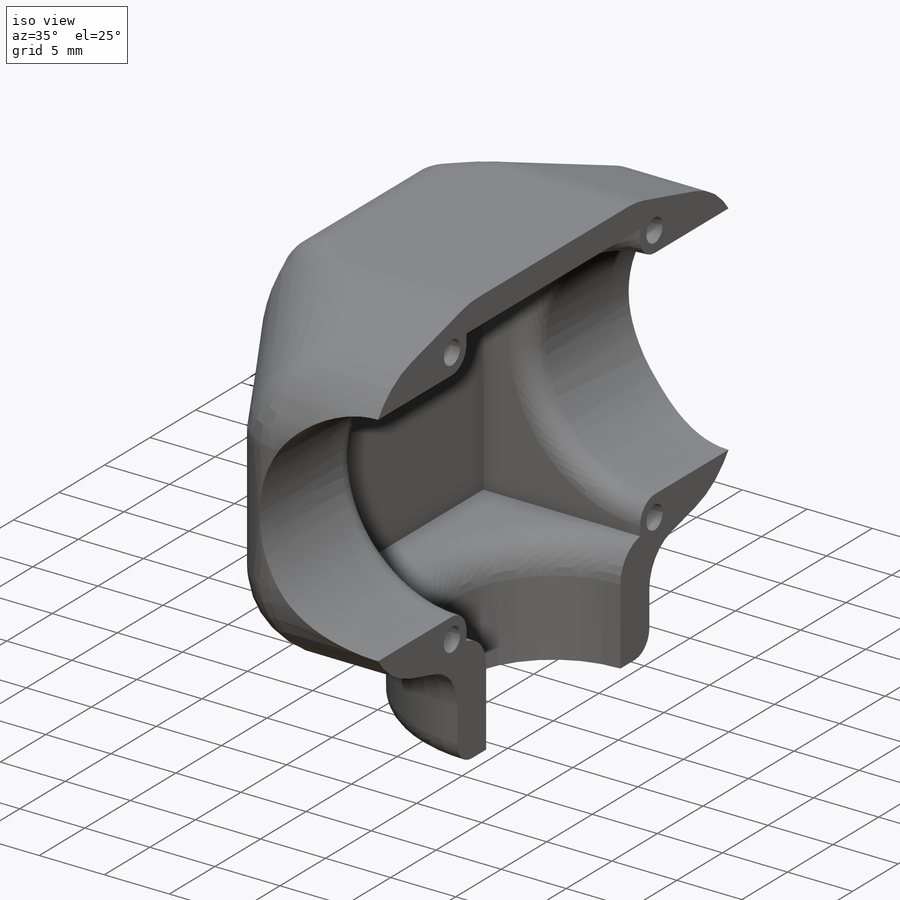
[diagram: iso view]
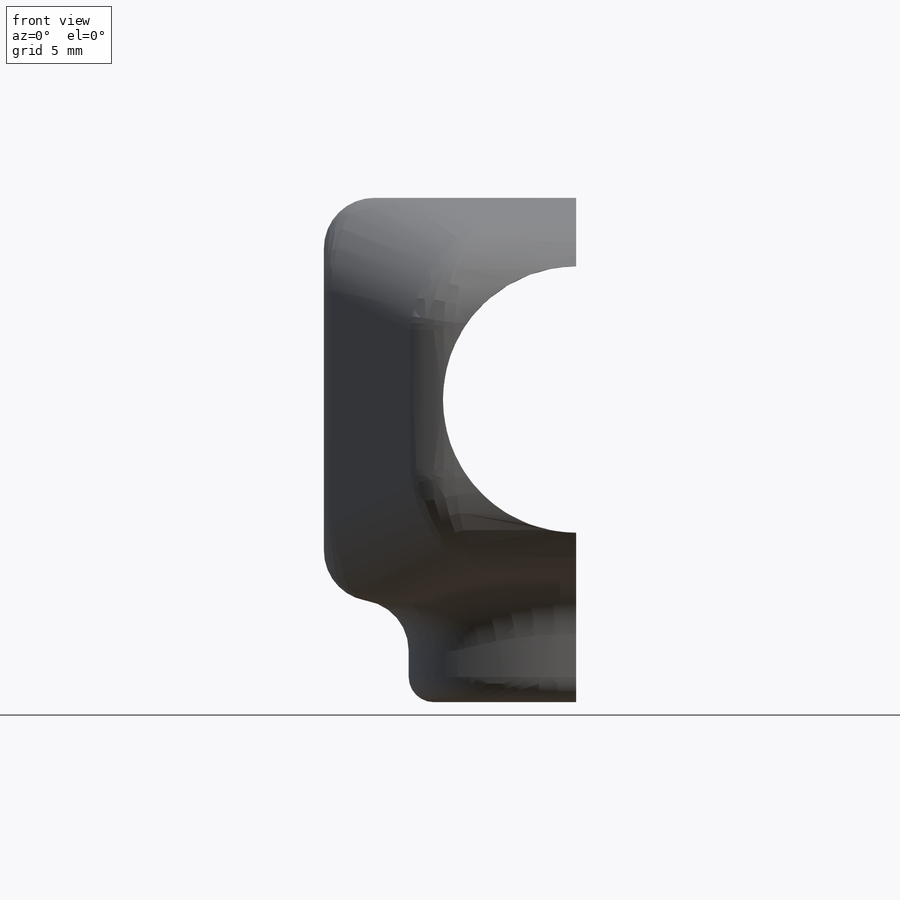
[diagram: front view]
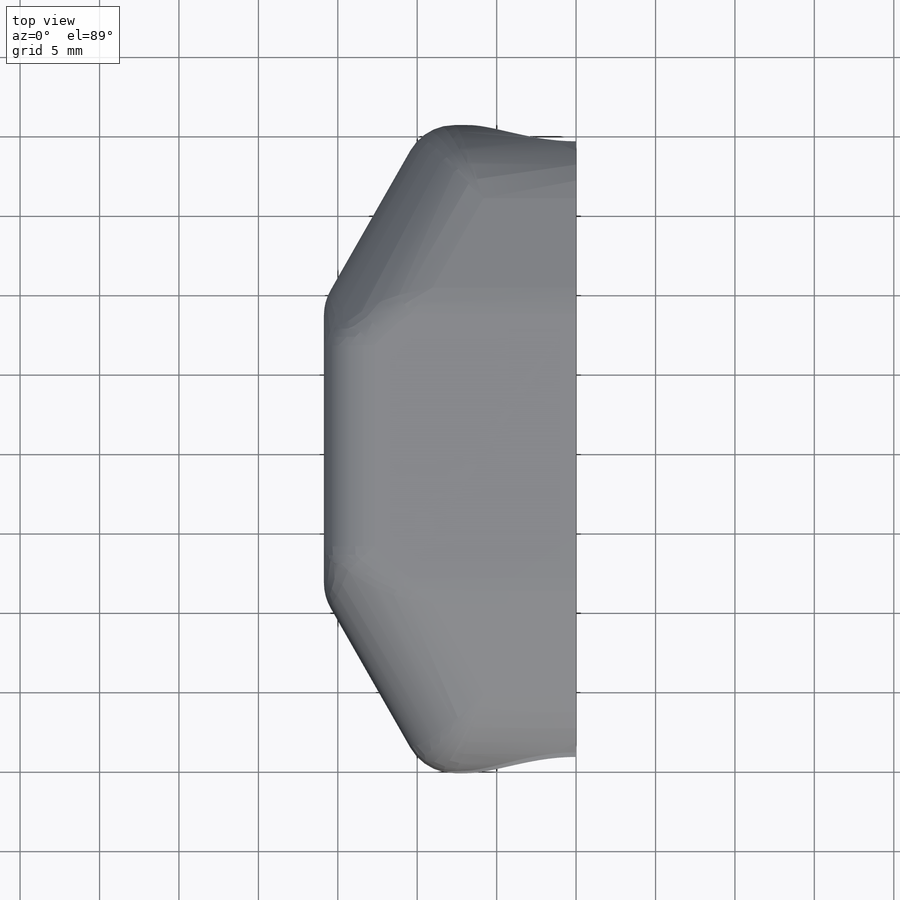
[diagram: top view]
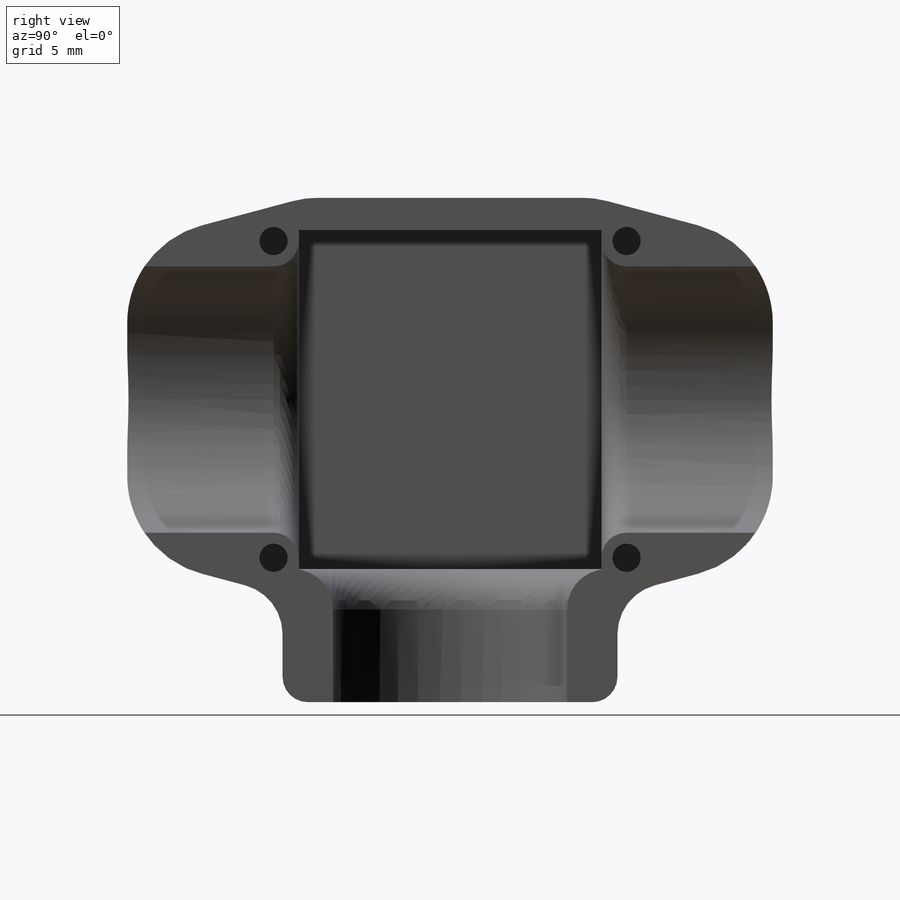
[diagram: right view]
SOLIDWORKS PART (.sldprt)
format: sldprt  version: not decoded by parser v0  size: 547,840 bytes
history: native  units: mm
features: sketch x6, fillet x6, cut_extrude x4, chamfer x3, extrude x2, material x1 (+14 scaffold rows collapsed)
feature tree (36):
  scaffold x14  (default folders/planes/origin — collapsed)
  material  "Material <not specified>"
  sketch  "Sketch1"  dims[D1=16.764mm D2=31.75mm D3=25.4mm]
  extrude  "Boss-Extrude1"  Depth=40.64mm
  chamfer  "Chamfer1"  Distance=11.176mm Angle=15deg
  chamfer  "Chamfer2"  Distance=11.176mm
  chamfer  "Chamfer3"  Distance=6.35mm
  fillet  "Fillet1"  Radius=6.35mm
  fillet  "Fillet2"  Radius=3.175mm
  sketch  "Sketch7"
  cut_extrude  "Cut-Extrude2"  [1 undecoded]
  sketch  "Sketch8"  dims[D1=19.05mm D2=21.336mm]
  cut_extrude  "Cut-Extrude3"  Depth=12.065mm
  fillet  "Fillet3"  Radius=1.5875mm
  sketch  "Sketch9"  dims[D1=1.778mm]
  cut_extrude  "Cut-Extrude4"  Depth=9.525mm
  sketch  "Sketch11"  dims[D1=14.732mm]
  cut_extrude  "Cut-Extrude5"  [1 undecoded]
  sketch  "Sketch12"  dims[D1=3.175mm]
  extrude  "Boss-Extrude2"  Depth=6.35mm
  fillet  "Fillet4"  Radius=3.175mm
  fillet  "Fillet5"  Radius=1.5875mm
  fillet  "Fillet6"  Radius=2.54mm
decode coverage: 18 of 21 modeling features carry decoded parameters
note: 2 parameter values undecoded
note: suppression state not decoded; provenance and decode notes live in map.json
